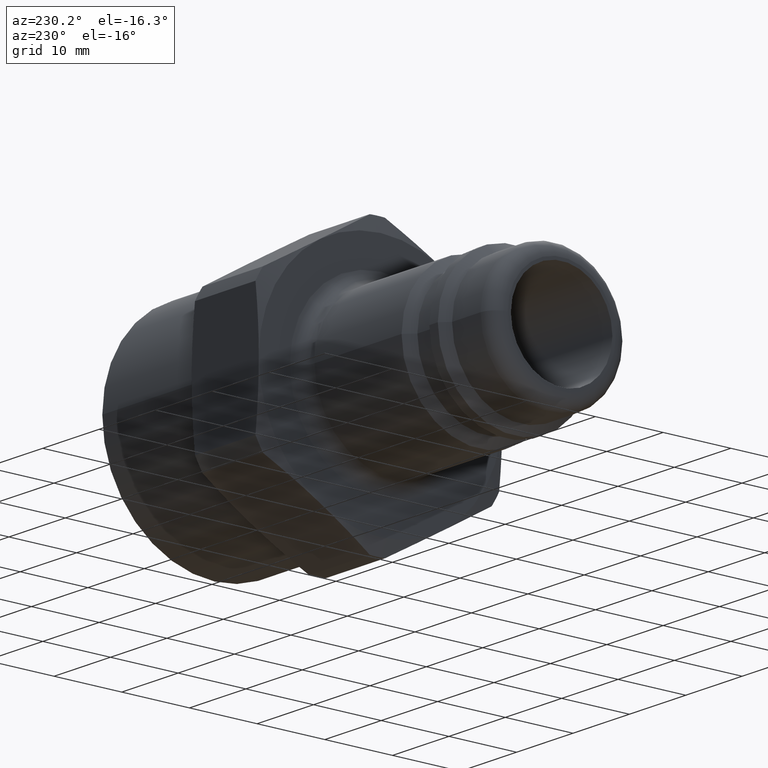
[diagram: clean part render]
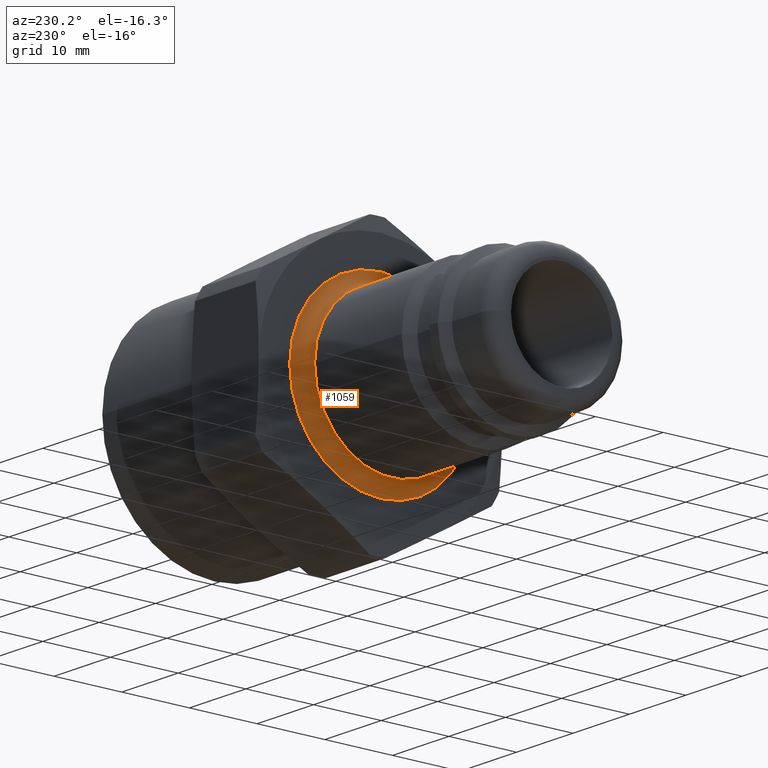
[diagram: same view with one face highlighted and labeled with its STEP entity id]
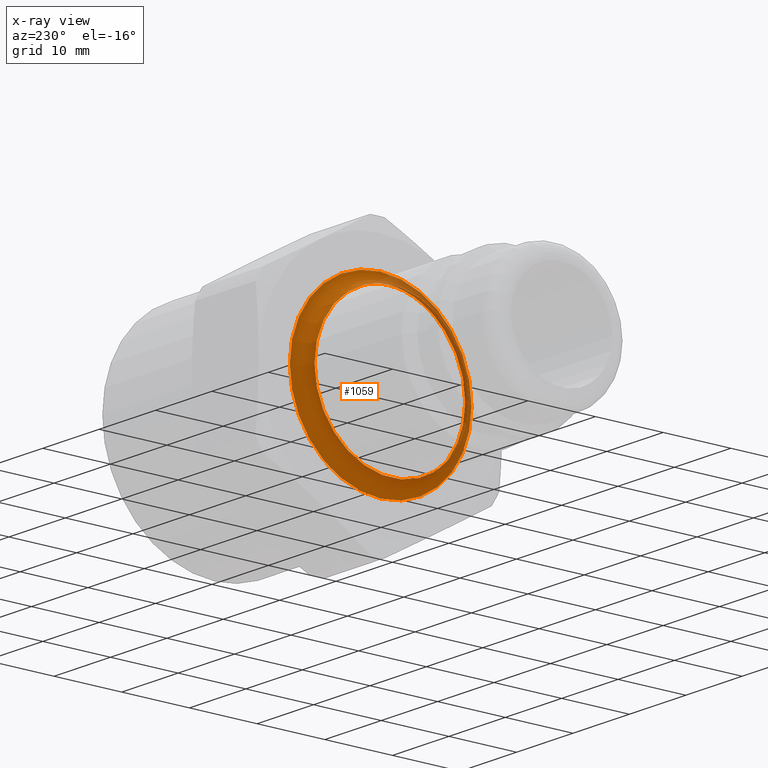
[diagram: x-ray of the same camera — body ghosted, the highlighted face saturated]
A machine part, auxiliary view. The second image highlights one B-rep face of the part: STEP entity #1059.
The next image is the same camera in x-ray: the body ghosted, the highlighted face saturated — about 17% of this face is hidden behind the body in this view.
In plain terms, the highlighted toroidal blend (fillet) surface has major radius 13.425 mm and minor (blend) radius 2 mm.
Its self-contained STEP definition (entity closure, byte-faithful):
#1032=CARTESIAN_POINT('',(30.100000000000001,0.0,0.0));
#1033=DIRECTION('',(1.0,0.0,0.0));
#1034=DIRECTION('',(0.0,0.0,-1.0));
#1035=AXIS2_PLACEMENT_3D('',#1032,#1033,#1034);
#1036=TOROIDAL_SURFACE('',#1035,13.425000000000001,2.0);
#1037=CARTESIAN_POINT('',(30.100000000000001,11.425000000000001,0.0));
#1038=VERTEX_POINT('',#1037);
#1039=CARTESIAN_POINT('',(30.100000000000001,0.0,0.0));
#1040=DIRECTION('',(1.0,0.0,0.0));
#1041=DIRECTION('',(0.0,-1.0,0.0));
#1042=AXIS2_PLACEMENT_3D('',#1039,#1040,#1041);
#1043=CIRCLE('',#1042,11.425000000000001);
#1044=EDGE_CURVE('',#1038,#1038,#1043,.T.);
#1045=ORIENTED_EDGE('',*,*,#1044,.T.);
#1046=EDGE_LOOP('',(#1045));
#1047=FACE_OUTER_BOUND('',#1046,.T.);
#1048=CARTESIAN_POINT('',(32.100000000000001,13.425000000000001,-3.288177E-015));
#1049=VERTEX_POINT('',#1048);
#1050=CARTESIAN_POINT('',(32.100000000000001,0.0,0.0));
#1051=DIRECTION('',(-1.0,0.0,0.0));
#1052=DIRECTION('',(0.0,-1.0,0.0));
#1053=AXIS2_PLACEMENT_3D('',#1050,#1051,#1052);
#1054=CIRCLE('',#1053,13.425000000000001);
#1055=EDGE_CURVE('',#1049,#1049,#1054,.T.);
#1056=ORIENTED_EDGE('',*,*,#1055,.T.);
#1057=EDGE_LOOP('',(#1056));
#1058=FACE_BOUND('',#1057,.T.);
#1059=ADVANCED_FACE('',(#1047,#1058),#1036,.F.);